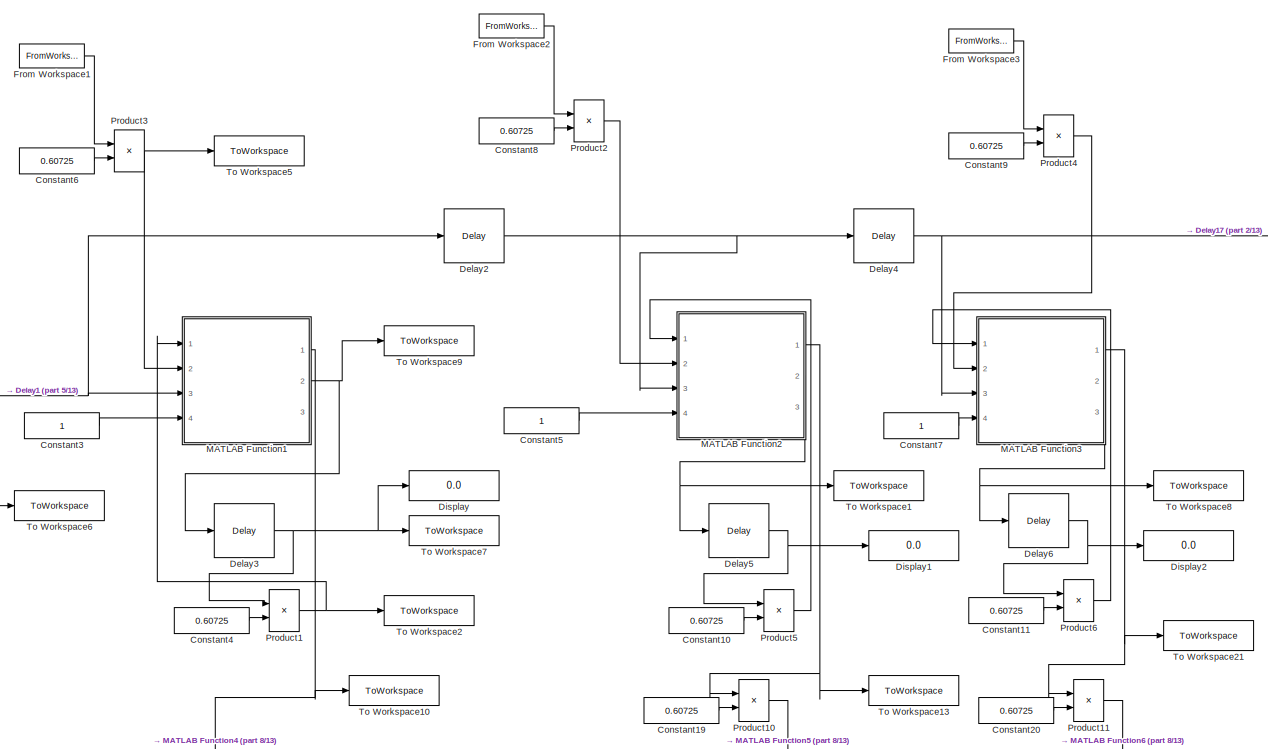
[diagram: root canvas - part 1/13, top left region]
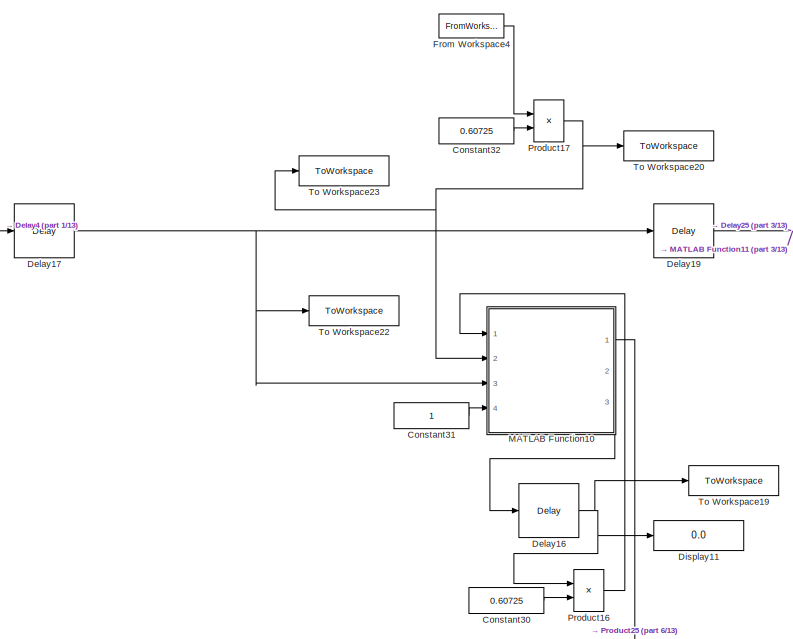
[diagram: root canvas - part 2/13, top center region]
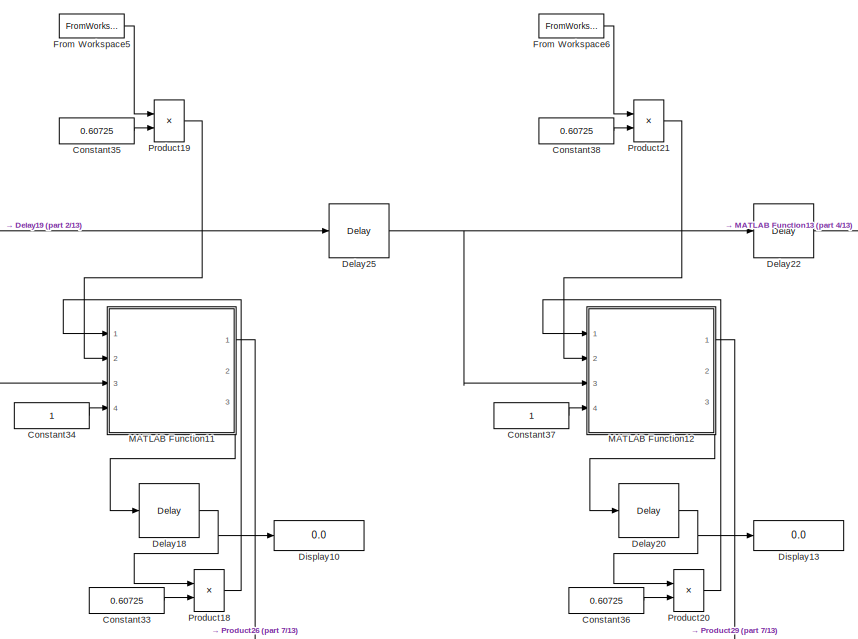
[diagram: root canvas - part 3/13, top right region]
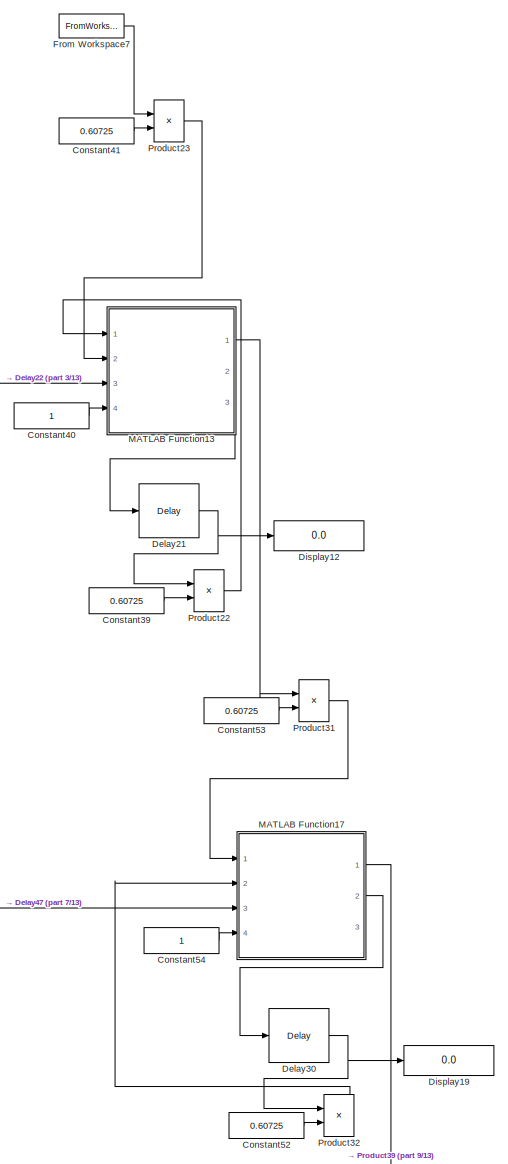
[diagram: root canvas - part 4/13, top right region]
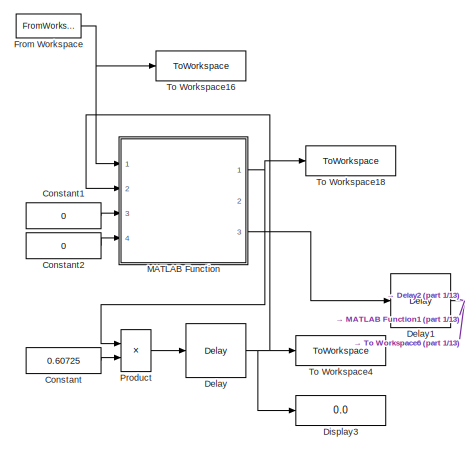
[diagram: root canvas - part 5/13, top left region]
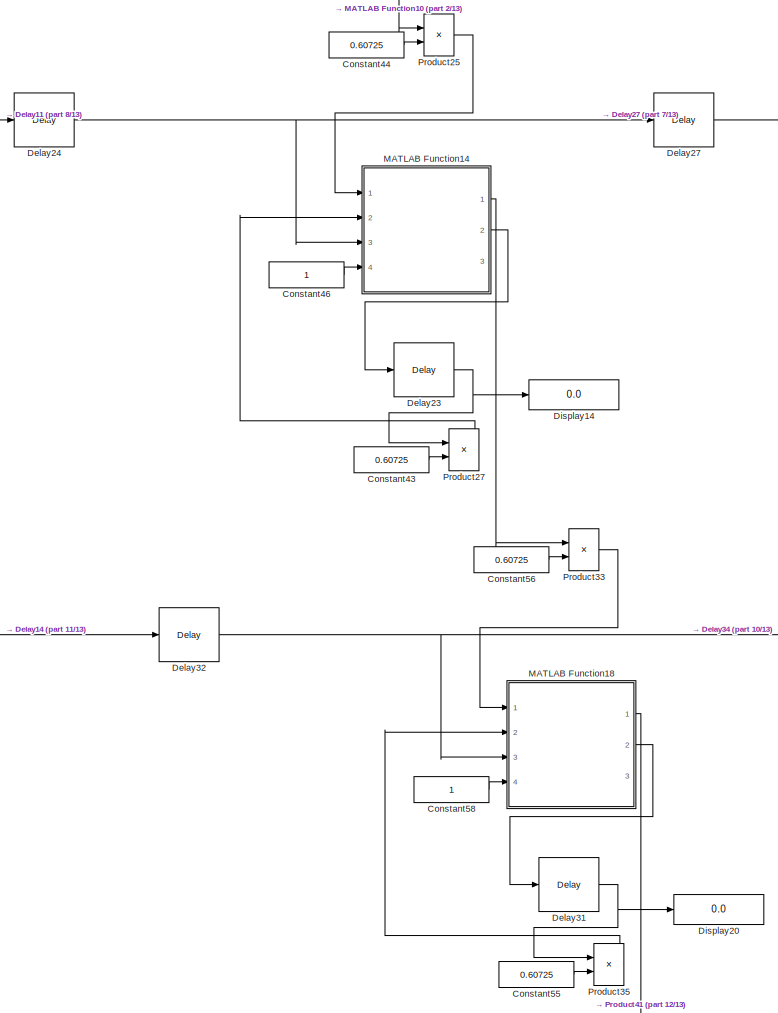
[diagram: root canvas - part 6/13, central region]
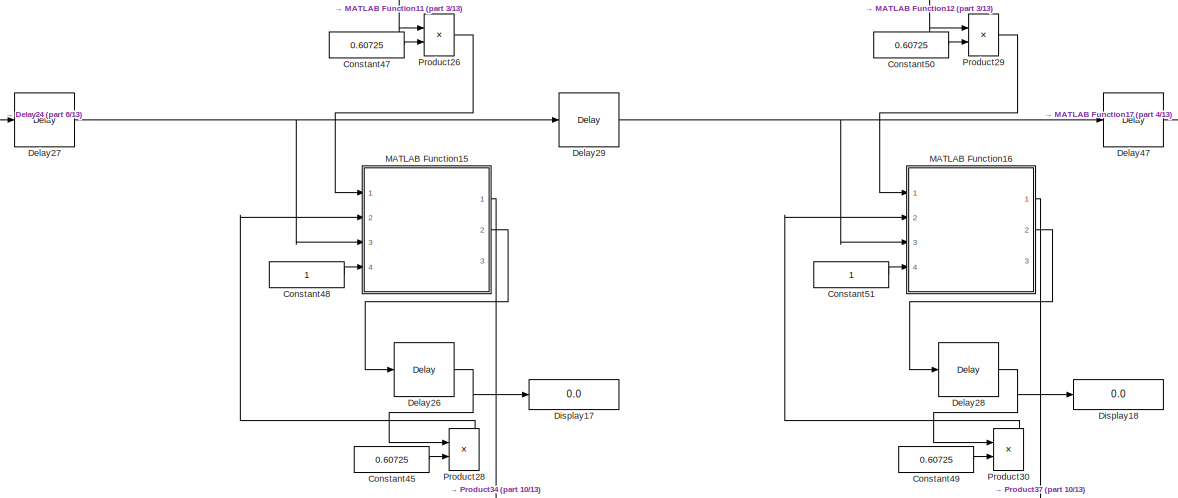
[diagram: root canvas - part 7/13, middle right region]
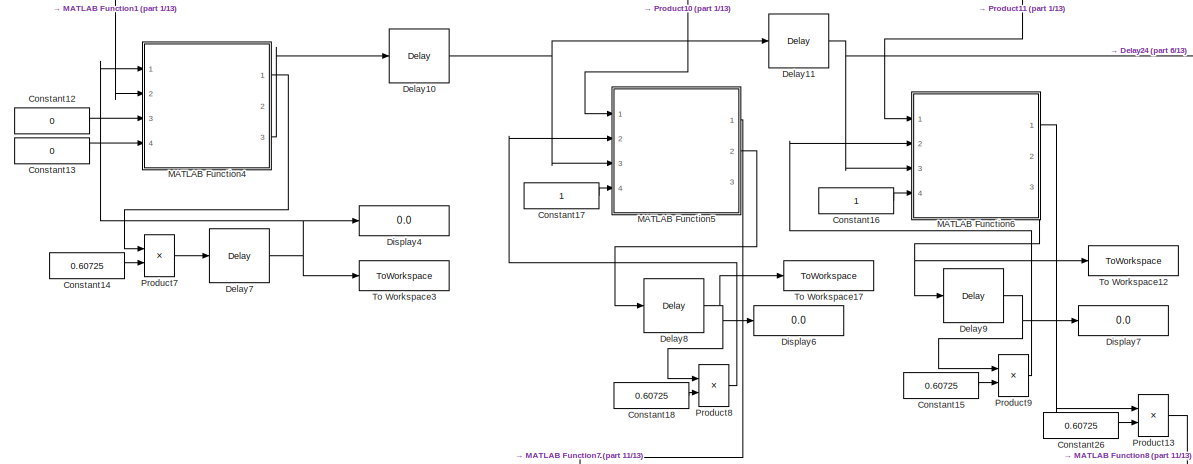
[diagram: root canvas - part 8/13, middle left region]
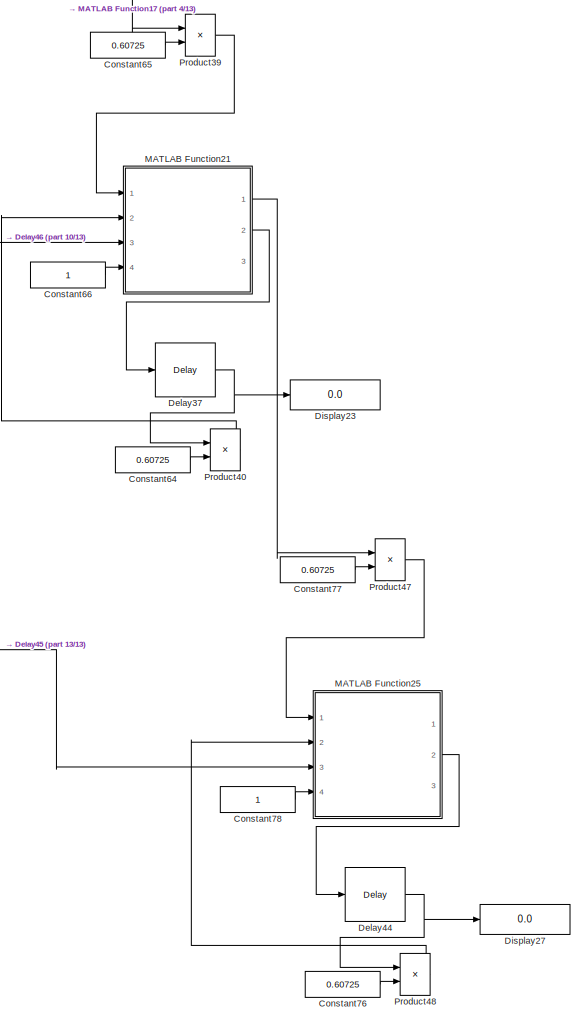
[diagram: root canvas - part 9/13, bottom right region]
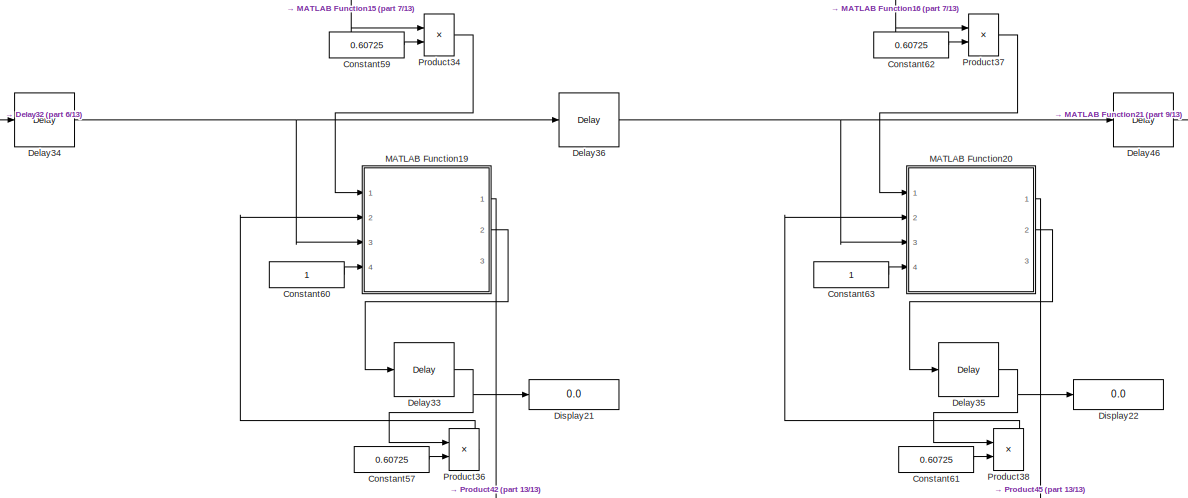
[diagram: root canvas - part 10/13, middle right region]
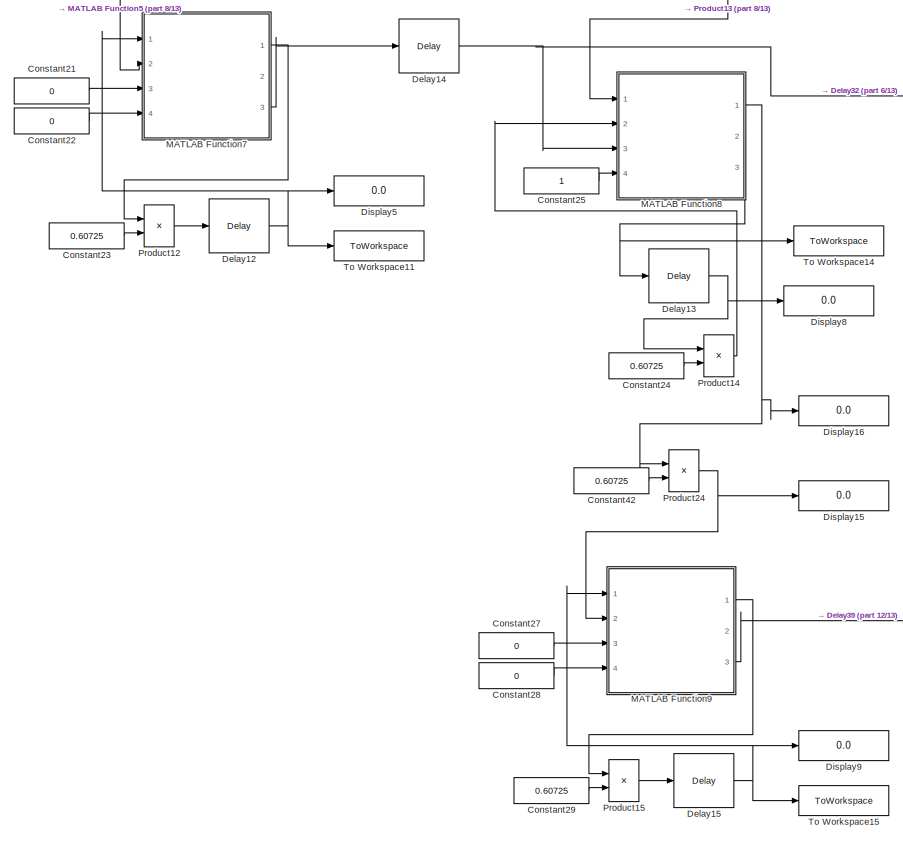
[diagram: root canvas - part 11/13, bottom left region]
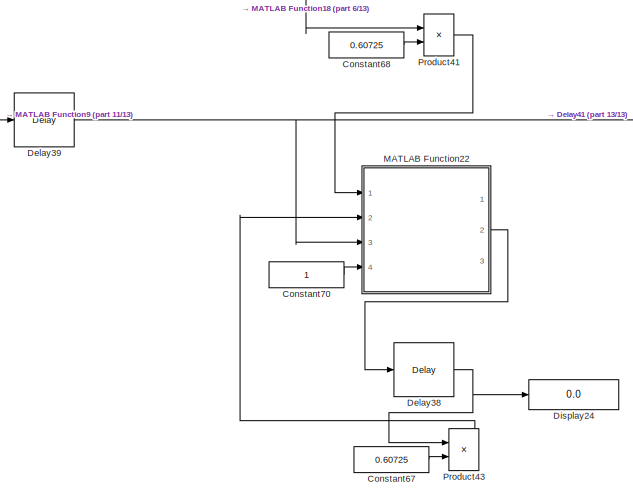
[diagram: root canvas - part 12/13, bottom center region]
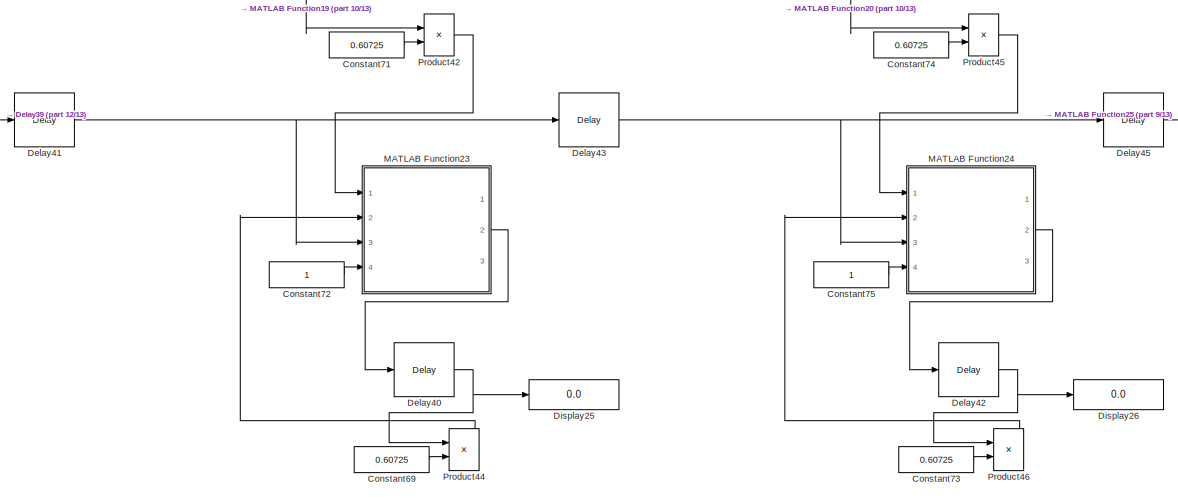
[diagram: root canvas - part 13/13, bottom right region]
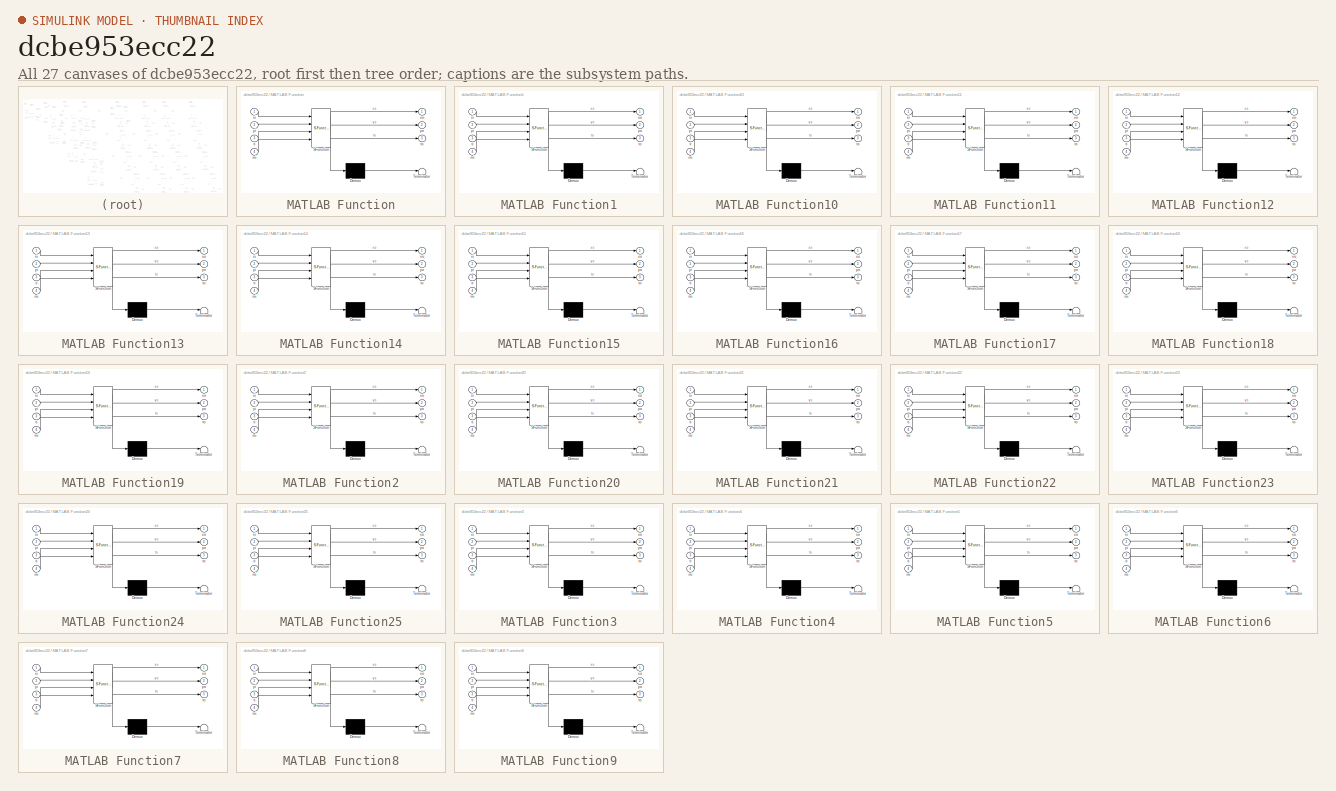
[diagram: thumbnail index - all 27 canvases of the model, root first then tree order]
MODEL slx_dcbe953ecc22
KIND model
CONFIG AbsTol = auto
CONFIG EnableMultiTasking = off
CONFIG FixedStep = 1
CONFIG MaxStep = auto
CONFIG MinStep = auto
CONFIG RelTol = 1e-3
CONFIG SampleTimeConstraint = Unconstrained
CONFIG SolverName = FixedStepDiscrete
CONFIG StartTime = 0.0
CONFIG StopTime = 40
BLOCK [Constant] Constant
  Value = 0.60725
BLOCK [Constant] Constant1
  Value = 0
BLOCK [Constant] Constant10
  Value = 0.60725
BLOCK [Constant] Constant11
  Value = 0.60725
BLOCK [Constant] Constant12
  Value = 0
BLOCK [Constant] Constant13
  Value = 0
BLOCK [Constant] Constant14
  Value = 0.60725
BLOCK [Constant] Constant15
  Value = 0.60725
BLOCK [Constant] Constant16
BLOCK [Constant] Constant17
BLOCK [Constant] Constant18
  Value = 0.60725
BLOCK [Constant] Constant19
  Value = 0.60725
BLOCK [Constant] Constant2
  Value = 0
BLOCK [Constant] Constant20
  Value = 0.60725
BLOCK [Constant] Constant21
  Value = 0
BLOCK [Constant] Constant22
  Value = 0
BLOCK [Constant] Constant23
  Value = 0.60725
BLOCK [Constant] Constant24
  Value = 0.60725
BLOCK [Constant] Constant25
BLOCK [Constant] Constant26
  Value = 0.60725
BLOCK [Constant] Constant27
  Value = 0
BLOCK [Constant] Constant28
  Value = 0
BLOCK [Constant] Constant29
  Value = 0.60725
BLOCK [Constant] Constant3
BLOCK [Constant] Constant30
  Value = 0.60725
BLOCK [Constant] Constant31
BLOCK [Constant] Constant32
  Value = 0.60725
BLOCK [Constant] Constant33
  Value = 0.60725
BLOCK [Constant] Constant34
BLOCK [Constant] Constant35
  Value = 0.60725
BLOCK [Constant] Constant36
  Value = 0.60725
BLOCK [Constant] Constant37
BLOCK [Constant] Constant38
  Value = 0.60725
BLOCK [Constant] Constant39
  Value = 0.60725
BLOCK [Constant] Constant4
  Value = 0.60725
BLOCK [Constant] Constant40
BLOCK [Constant] Constant41
  Value = 0.60725
BLOCK [Constant] Constant42
  Value = 0.60725
BLOCK [Constant] Constant43
  Value = 0.60725
BLOCK [Constant] Constant44
  Value = 0.60725
BLOCK [Constant] Constant45
  Value = 0.60725
BLOCK [Constant] Constant46
BLOCK [Constant] Constant47
  Value = 0.60725
BLOCK [Constant] Constant48
BLOCK [Constant] Constant49
  Value = 0.60725
BLOCK [Constant] Constant5
BLOCK [Constant] Constant50
  Value = 0.60725
BLOCK [Constant] Constant51
BLOCK [Constant] Constant52
  Value = 0.60725
BLOCK [Constant] Constant53
  Value = 0.60725
BLOCK [Constant] Constant54
BLOCK [Constant] Constant55
  Value = 0.60725
BLOCK [Constant] Constant56
  Value = 0.60725
BLOCK [Constant] Constant57
  Value = 0.60725
BLOCK [Constant] Constant58
BLOCK [Constant] Constant59
  Value = 0.60725
BLOCK [Constant] Constant6
  Value = 0.60725
BLOCK [Constant] Constant60
BLOCK [Constant] Constant61
  Value = 0.60725
BLOCK [Constant] Constant62
  Value = 0.60725
BLOCK [Constant] Constant63
BLOCK [Constant] Constant64
  Value = 0.60725
BLOCK [Constant] Constant65
  Value = 0.60725
BLOCK [Constant] Constant66
BLOCK [Constant] Constant67
  Value = 0.60725
BLOCK [Constant] Constant68
  Value = 0.60725
BLOCK [Constant] Constant69
  Value = 0.60725
BLOCK [Constant] Constant7
BLOCK [Constant] Constant70
BLOCK [Constant] Constant71
  Value = 0.60725
BLOCK [Constant] Constant72
BLOCK [Constant] Constant73
  Value = 0.60725
BLOCK [Constant] Constant74
  Value = 0.60725
BLOCK [Constant] Constant75
BLOCK [Constant] Constant76
  Value = 0.60725
BLOCK [Constant] Constant77
  Value = 0.60725
BLOCK [Constant] Constant78
BLOCK [Constant] Constant8
  Value = 0.60725
BLOCK [Constant] Constant9
  Value = 0.60725
BLOCK [Delay] Delay
  DelayLength = 1
  InitialCondition = 0
  InputPortMap = u0
  Ports = [1, 1]
BLOCK [Delay] Delay1
  DelayLength = 1
  InitialCondition = 0
  InputPortMap = u0
  Ports = [1, 1]
BLOCK [Delay] Delay10
  DelayLength = 1
  InitialCondition = 0
  InputPortMap = u0
  Ports = [1, 1]
BLOCK [Delay] Delay11
  DelayLength = 1
  InitialCondition = 0
  InputPortMap = u0
  Ports = [1, 1]
BLOCK [Delay] Delay12
  DelayLength = 1
  InitialCondition = 0
  InputPortMap = u0
  Ports = [1, 1]
BLOCK [Delay] Delay13
  DelayLength = 1
  InitialCondition = 0
  InputPortMap = u0
  Ports = [1, 1]
BLOCK [Delay] Delay14
  DelayLength = 1
  InitialCondition = 0
  InputPortMap = u0
  Ports = [1, 1]
BLOCK [Delay] Delay15
  DelayLength = 1
  InitialCondition = 0
  InputPortMap = u0
  Ports = [1, 1]
BLOCK [Delay] Delay16
  DelayLength = 1
  InitialCondition = 0
  InputPortMap = u0
  Ports = [1, 1]
BLOCK [Delay] Delay17
  DelayLength = 1
  InitialCondition = 0
  InputPortMap = u0
  Ports = [1, 1]
BLOCK [Delay] Delay18
  DelayLength = 1
  InitialCondition = 0
  InputPortMap = u0
  Ports = [1, 1]
BLOCK [Delay] Delay19
  DelayLength = 1
  InitialCondition = 0
  InputPortMap = u0
  Ports = [1, 1]
BLOCK [Delay] Delay2
  DelayLength = 1
  InitialCondition = 0
  InputPortMap = u0
  Ports = [1, 1]
BLOCK [Delay] Delay20
  DelayLength = 1
  InitialCondition = 0
  InputPortMap = u0
  Ports = [1, 1]
BLOCK [Delay] Delay21
  DelayLength = 1
  InitialCondition = 0
  InputPortMap = u0
  Ports = [1, 1]
BLOCK [Delay] Delay22
  DelayLength = 1
  InitialCondition = 0
  InputPortMap = u0
  Ports = [1, 1]
BLOCK [Delay] Delay23
  DelayLength = 1
  InitialCondition = 0
  InputPortMap = u0
  Ports = [1, 1]
BLOCK [Delay] Delay24
  DelayLength = 1
  InitialCondition = 0
  InputPortMap = u0
  Ports = [1, 1]
BLOCK [Delay] Delay25
  DelayLength = 1
  InitialCondition = 0
  InputPortMap = u0
  Ports = [1, 1]
BLOCK [Delay] Delay26
  DelayLength = 1
  InitialCondition = 0
  InputPortMap = u0
  Ports = [1, 1]
BLOCK [Delay] Delay27
  DelayLength = 1
  InitialCondition = 0
  InputPortMap = u0
  Ports = [1, 1]
BLOCK [Delay] Delay28
  DelayLength = 1
  InitialCondition = 0
  InputPortMap = u0
  Ports = [1, 1]
BLOCK [Delay] Delay29
  DelayLength = 1
  InitialCondition = 0
  InputPortMap = u0
  Ports = [1, 1]
BLOCK [Delay] Delay3
  DelayLength = 1
  InitialCondition = 0
  InputPortMap = u0
  Ports = [1, 1]
BLOCK [Delay] Delay30
  DelayLength = 1
  InitialCondition = 0
  InputPortMap = u0
  Ports = [1, 1]
BLOCK [Delay] Delay31
  DelayLength = 1
  InitialCondition = 0
  InputPortMap = u0
  Ports = [1, 1]
BLOCK [Delay] Delay32
  DelayLength = 1
  InitialCondition = 0
  InputPortMap = u0
  Ports = [1, 1]
BLOCK [Delay] Delay33
  DelayLength = 1
  InitialCondition = 0
  InputPortMap = u0
  Ports = [1, 1]
BLOCK [Delay] Delay34
  DelayLength = 1
  InitialCondition = 0
  InputPortMap = u0
  Ports = [1, 1]
BLOCK [Delay] Delay35
  DelayLength = 1
  InitialCondition = 0
  InputPortMap = u0
  Ports = [1, 1]
BLOCK [Delay] Delay36
  DelayLength = 1
  InitialCondition = 0
  InputPortMap = u0
  Ports = [1, 1]
BLOCK [Delay] Delay37
  DelayLength = 1
  InitialCondition = 0
  InputPortMap = u0
  Ports = [1, 1]
BLOCK [Delay] Delay38
  DelayLength = 1
  InitialCondition = 0
  InputPortMap = u0
  Ports = [1, 1]
BLOCK [Delay] Delay39
  DelayLength = 1
  InitialCondition = 0
  InputPortMap = u0
  Ports = [1, 1]
BLOCK [Delay] Delay4
  DelayLength = 1
  InitialCondition = 0
  InputPortMap = u0
  Ports = [1, 1]
BLOCK [Delay] Delay40
  DelayLength = 1
  InitialCondition = 0
  InputPortMap = u0
  Ports = [1, 1]
BLOCK [Delay] Delay41
  DelayLength = 1
  InitialCondition = 0
  InputPortMap = u0
  Ports = [1, 1]
BLOCK [Delay] Delay42
  DelayLength = 1
  InitialCondition = 0
  InputPortMap = u0
  Ports = [1, 1]
BLOCK [Delay] Delay43
  DelayLength = 1
  InitialCondition = 0
  InputPortMap = u0
  Ports = [1, 1]
BLOCK [Delay] Delay44
  DelayLength = 1
  InitialCondition = 0
  InputPortMap = u0
  Ports = [1, 1]
BLOCK [Delay] Delay45
  DelayLength = 1
  InitialCondition = 0
  InputPortMap = u0
  Ports = [1, 1]
BLOCK [Delay] Delay46
  DelayLength = 1
  InitialCondition = 0
  InputPortMap = u0
  Ports = [1, 1]
BLOCK [Delay] Delay47
  DelayLength = 1
  InitialCondition = 0
  InputPortMap = u0
  Ports = [1, 1]
BLOCK [Delay] Delay5
  DelayLength = 1
  InitialCondition = 0
  InputPortMap = u0
  Ports = [1, 1]
BLOCK [Delay] Delay6
  DelayLength = 1
  InitialCondition = 0
  InputPortMap = u0
  Ports = [1, 1]
BLOCK [Delay] Delay7
  DelayLength = 1
  InitialCondition = 0
  InputPortMap = u0
  Ports = [1, 1]
BLOCK [Delay] Delay8
  DelayLength = 1
  InitialCondition = 0
  InputPortMap = u0
  Ports = [1, 1]
BLOCK [Delay] Delay9
  DelayLength = 1
  InitialCondition = 0
  InputPortMap = u0
  Ports = [1, 1]
BLOCK [Display] Display
  Decimation = 1
  Ports = [1]
BLOCK [Display] Display1
  Decimation = 1
  Ports = [1]
BLOCK [Display] Display10
  Decimation = 1
  Ports = [1]
BLOCK [Display] Display11
  Decimation = 1
  Ports = [1]
BLOCK [Display] Display12
  Decimation = 1
  Ports = [1]
BLOCK [Display] Display13
  Decimation = 1
  Ports = [1]
BLOCK [Display] Display14
  Decimation = 1
  Ports = [1]
BLOCK [Display] Display15
  Decimation = 1
  Ports = [1]
BLOCK [Display] Display16
  Decimation = 1
  Ports = [1]
BLOCK [Display] Display17
  Decimation = 1
  Ports = [1]
BLOCK [Display] Display18
  Decimation = 1
  Ports = [1]
BLOCK [Display] Display19
  Decimation = 1
  Ports = [1]
BLOCK [Display] Display2
  Decimation = 1
  Ports = [1]
BLOCK [Display] Display20
  Decimation = 1
  Ports = [1]
BLOCK [Display] Display21
  Decimation = 1
  Ports = [1]
BLOCK [Display] Display22
  Decimation = 1
  Ports = [1]
BLOCK [Display] Display23
  Decimation = 1
  Ports = [1]
BLOCK [Display] Display24
  Decimation = 1
  Ports = [1]
BLOCK [Display] Display25
  Decimation = 1
  Ports = [1]
BLOCK [Display] Display26
  Decimation = 1
  Ports = [1]
BLOCK [Display] Display27
  Decimation = 1
  Ports = [1]
BLOCK [Display] Display3
  Decimation = 1
  Ports = [1]
BLOCK [Display] Display4
  Decimation = 1
  Ports = [1]
BLOCK [Display] Display5
  Decimation = 1
  Ports = [1]
BLOCK [Display] Display6
  Decimation = 1
  Ports = [1]
BLOCK [Display] Display7
  Decimation = 1
  Ports = [1]
BLOCK [Display] Display8
  Decimation = 1
  Ports = [1]
BLOCK [Display] Display9
  Decimation = 1
  Ports = [1]
BLOCK [FromWorkspace] From Workspace
  OutputAfterFinalValue = Setting to zero
  VariableName = SlxA
BLOCK [FromWorkspace] From Workspace1
  OutputAfterFinalValue = Setting to zero
  VariableName = SlxB
BLOCK [FromWorkspace] From Workspace2
  OutputAfterFinalValue = Setting to zero
  VariableName = SlxC
BLOCK [FromWorkspace] From Workspace3
  OutputAfterFinalValue = Setting to zero
  VariableName = SlxD
BLOCK [FromWorkspace] From Workspace4
  OutputAfterFinalValue = Setting to zero
  VariableName = SlxQ1
BLOCK [FromWorkspace] From Workspace5
  OutputAfterFinalValue = Setting to zero
  VariableName = SlxQ2
BLOCK [FromWorkspace] From Workspace6
  OutputAfterFinalValue = Setting to zero
  VariableName = SlxQ3
BLOCK [FromWorkspace] From Workspace7
  OutputAfterFinalValue = Setting to zero
  VariableName = SlxQ4
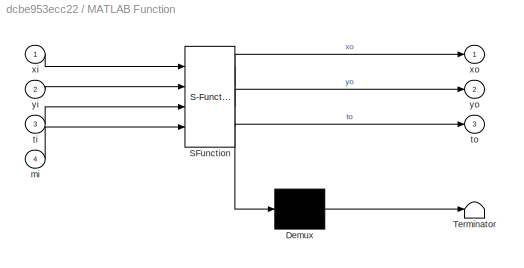
BLOCK [SubSystem] MATLAB Function
  ErrorFcn = Stateflow.Translate.translate
  PermitHierarchicalResolution = ExplicitOnly
  Ports = [4, 3]
  RequestExecContextInheritance = off
  SFBlockType = MATLAB Function
  TreatAsAtomicUnit = on
BLOCK [Demux] MATLAB Function/ Demux 
  Outputs = 1
  Ports = [1, 1]
BLOCK [S-Function] MATLAB Function/ SFunction 
  EnableBusSupport = on
  FunctionName = sf_sfun
  PortCounts = [4 4]
  Ports = [4, 4]
  SFcnIsStateOwnerBlock = off
  SFunctionDeploymentMode = off
  Tag = Stateflow S-Function 2
BLOCK [Terminator] MATLAB Function/ Terminator 
BLOCK [Inport] MATLAB Function/mi
  Port = 4
BLOCK [Inport] MATLAB Function/ti
  Port = 3
BLOCK [Outport] MATLAB Function/to
  Port = 3
BLOCK [Inport] MATLAB Function/xi
BLOCK [Outport] MATLAB Function/xo
BLOCK [Inport] MATLAB Function/yi
  Port = 2
BLOCK [Outport] MATLAB Function/yo
  Port = 2
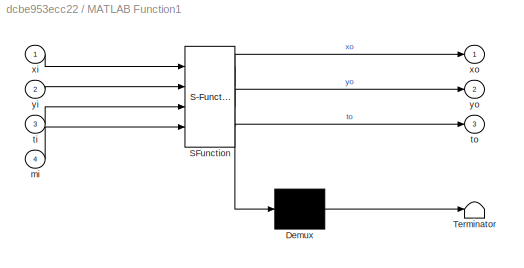
BLOCK [SubSystem] MATLAB Function1
  ErrorFcn = Stateflow.Translate.translate
  PermitHierarchicalResolution = ExplicitOnly
  Ports = [4, 3]
  RequestExecContextInheritance = off
  SFBlockType = MATLAB Function
  TreatAsAtomicUnit = on
BLOCK [Demux] MATLAB Function1/ Demux 
  Outputs = 1
  Ports = [1, 1]
BLOCK [S-Function] MATLAB Function1/ SFunction 
  EnableBusSupport = on
  FunctionName = sf_sfun
  PortCounts = [4 4]
  Ports = [4, 4]
  SFcnIsStateOwnerBlock = off
  SFunctionDeploymentMode = off
  Tag = Stateflow S-Function 1
BLOCK [Terminator] MATLAB Function1/ Terminator 
BLOCK [Inport] MATLAB Function1/mi
  Port = 4
BLOCK [Inport] MATLAB Function1/ti
  Port = 3
BLOCK [Outport] MATLAB Function1/to
  Port = 3
BLOCK [Inport] MATLAB Function1/xi
BLOCK [Outport] MATLAB Function1/xo
BLOCK [Inport] MATLAB Function1/yi
  Port = 2
BLOCK [Outport] MATLAB Function1/yo
  Port = 2
BLOCK [SubSystem] MATLAB Function10
  ErrorFcn = Stateflow.Translate.translate
  PermitHierarchicalResolution = ExplicitOnly
  Ports = [4, 3]
  RequestExecContextInheritance = off
  SFBlockType = MATLAB Function
  TreatAsAtomicUnit = on
BLOCK [Demux] MATLAB Function10/ Demux 
  Outputs = 1
  Ports = [1, 1]
BLOCK [S-Function] MATLAB Function10/ SFunction 
  EnableBusSupport = on
  FunctionName = sf_sfun
  PortCounts = [4 4]
  Ports = [4, 4]
  SFcnIsStateOwnerBlock = off
  SFunctionDeploymentMode = off
  Tag = Stateflow S-Function 11
BLOCK [Terminator] MATLAB Function10/ Terminator 
BLOCK [Inport] MATLAB Function10/mi
  Port = 4
BLOCK [Inport] MATLAB Function10/ti
  Port = 3
BLOCK [Outport] MATLAB Function10/to
  Port = 3
BLOCK [Inport] MATLAB Function10/xi
BLOCK [Outport] MATLAB Function10/xo
BLOCK [Inport] MATLAB Function10/yi
  Port = 2
BLOCK [Outport] MATLAB Function10/yo
  Port = 2
BLOCK [SubSystem] MATLAB Function11
  ErrorFcn = Stateflow.Translate.translate
  PermitHierarchicalResolution = ExplicitOnly
  Ports = [4, 3]
  RequestExecContextInheritance = off
  SFBlockType = MATLAB Function
  TreatAsAtomicUnit = on
BLOCK [Demux] MATLAB Function11/ Demux 
  Outputs = 1
  Ports = [1, 1]
BLOCK [S-Function] MATLAB Function11/ SFunction 
  EnableBusSupport = on
  FunctionName = sf_sfun
  PortCounts = [4 4]
  Ports = [4, 4]
  SFcnIsStateOwnerBlock = off
  SFunctionDeploymentMode = off
  Tag = Stateflow S-Function 12
BLOCK [Terminator] MATLAB Function11/ Terminator 
BLOCK [Inport] MATLAB Function11/mi
  Port = 4
BLOCK [Inport] MATLAB Function11/ti
  Port = 3
BLOCK [Outport] MATLAB Function11/to
  Port = 3
BLOCK [Inport] MATLAB Function11/xi
BLOCK [Outport] MATLAB Function11/xo
BLOCK [Inport] MATLAB Function11/yi
  Port = 2
BLOCK [Outport] MATLAB Function11/yo
  Port = 2
BLOCK [SubSystem] MATLAB Function12
  ErrorFcn = Stateflow.Translate.translate
  PermitHierarchicalResolution = ExplicitOnly
  Ports = [4, 3]
  RequestExecContextInheritance = off
  SFBlockType = MATLAB Function
  TreatAsAtomicUnit = on
BLOCK [Demux] MATLAB Function12/ Demux 
  Outputs = 1
  Ports = [1, 1]
BLOCK [S-Function] MATLAB Function12/ SFunction 
  EnableBusSupport = on
  FunctionName = sf_sfun
  PortCounts = [4 4]
  Ports = [4, 4]
  SFcnIsStateOwnerBlock = off
  SFunctionDeploymentMode = off
  Tag = Stateflow S-Function 13
BLOCK [Terminator] MATLAB Function12/ Terminator 
BLOCK [Inport] MATLAB Function12/mi
  Port = 4
BLOCK [Inport] MATLAB Function12/ti
  Port = 3
BLOCK [Outport] MATLAB Function12/to
  Port = 3
BLOCK [Inport] MATLAB Function12/xi
BLOCK [Outport] MATLAB Function12/xo
BLOCK [Inport] MATLAB Function12/yi
  Port = 2
BLOCK [Outport] MATLAB Function12/yo
  Port = 2
BLOCK [SubSystem] MATLAB Function13
  ErrorFcn = Stateflow.Translate.translate
  PermitHierarchicalResolution = ExplicitOnly
  Ports = [4, 3]
  RequestExecContextInheritance = off
  SFBlockType = MATLAB Function
  TreatAsAtomicUnit = on
BLOCK [Demux] MATLAB Function13/ Demux 
  Outputs = 1
  Ports = [1, 1]
BLOCK [S-Function] MATLAB Function13/ SFunction 
  EnableBusSupport = on
  FunctionName = sf_sfun
  PortCounts = [4 4]
  Ports = [4, 4]
  SFcnIsStateOwnerBlock = off
  SFunctionDeploymentMode = off
  Tag = Stateflow S-Function 14
BLOCK [Terminator] MATLAB Function13/ Terminator 
BLOCK [Inport] MATLAB Function13/mi
  Port = 4
BLOCK [Inport] MATLAB Function13/ti
  Port = 3
BLOCK [Outport] MATLAB Function13/to
  Port = 3
BLOCK [Inport] MATLAB Function13/xi
BLOCK [Outport] MATLAB Function13/xo
BLOCK [Inport] MATLAB Function13/yi
  Port = 2
BLOCK [Outport] MATLAB Function13/yo
  Port = 2
BLOCK [SubSystem] MATLAB Function14
  ErrorFcn = Stateflow.Translate.translate
  PermitHierarchicalResolution = ExplicitOnly
  Ports = [4, 3]
  RequestExecContextInheritance = off
  SFBlockType = MATLAB Function
  TreatAsAtomicUnit = on
BLOCK [Demux] MATLAB Function14/ Demux 
  Outputs = 1
  Ports = [1, 1]
BLOCK [S-Function] MATLAB Function14/ SFunction 
  EnableBusSupport = on
  FunctionName = sf_sfun
  PortCounts = [4 4]
  Ports = [4, 4]
  SFcnIsStateOwnerBlock = off
  SFunctionDeploymentMode = off
  Tag = Stateflow S-Function 15
BLOCK [Terminator] MATLAB Function14/ Terminator 
BLOCK [Inport] MATLAB Function14/mi
  Port = 4
BLOCK [Inport] MATLAB Function14/ti
  Port = 3
BLOCK [Outport] MATLAB Function14/to
  Port = 3
BLOCK [Inport] MATLAB Function14/xi
BLOCK [Outport] MATLAB Function14/xo
BLOCK [Inport] MATLAB Function14/yi
  Port = 2
BLOCK [Outport] MATLAB Function14/yo
  Port = 2
BLOCK [SubSystem] MATLAB Function15
  ErrorFcn = Stateflow.Translate.translate
  PermitHierarchicalResolution = ExplicitOnly
  Ports = [4, 3]
  RequestExecContextInheritance = off
  SFBlockType = MATLAB Function
  TreatAsAtomicUnit = on
BLOCK [Demux] MATLAB Function15/ Demux 
  Outputs = 1
  Ports = [1, 1]
BLOCK [S-Function] MATLAB Function15/ SFunction 
  EnableBusSupport = on
  FunctionName = sf_sfun
  PortCounts = [4 4]
  Ports = [4, 4]
  SFcnIsStateOwnerBlock = off
  SFunctionDeploymentMode = off
  Tag = Stateflow S-Function 16
BLOCK [Terminator] MATLAB Function15/ Terminator 
BLOCK [Inport] MATLAB Function15/mi
  Port = 4
BLOCK [Inport] MATLAB Function15/ti
  Port = 3
BLOCK [Outport] MATLAB Function15/to
  Port = 3
BLOCK [Inport] MATLAB Function15/xi
BLOCK [Outport] MATLAB Function15/xo
BLOCK [Inport] MATLAB Function15/yi
  Port = 2
BLOCK [Outport] MATLAB Function15/yo
  Port = 2
BLOCK [SubSystem] MATLAB Function16
  ErrorFcn = Stateflow.Translate.translate
  PermitHierarchicalResolution = ExplicitOnly
  Ports = [4, 3]
  RequestExecContextInheritance = off
  SFBlockType = MATLAB Function
  TreatAsAtomicUnit = on
BLOCK [Demux] MATLAB Function16/ Demux 
  Outputs = 1
  Ports = [1, 1]
BLOCK [S-Function] MATLAB Function16/ SFunction 
  EnableBusSupport = on
  FunctionName = sf_sfun
  PortCounts = [4 4]
  Ports = [4, 4]
  SFcnIsStateOwnerBlock = off
  SFunctionDeploymentMode = off
  Tag = Stateflow S-Function 17
BLOCK [Terminator] MATLAB Function16/ Terminator 
BLOCK [Inport] MATLAB Function16/mi
  Port = 4
BLOCK [Inport] MATLAB Function16/ti
  Port = 3
BLOCK [Outport] MATLAB Function16/to
  Port = 3
BLOCK [Inport] MATLAB Function16/xi
BLOCK [Outport] MATLAB Function16/xo
BLOCK [Inport] MATLAB Function16/yi
  Port = 2
BLOCK [Outport] MATLAB Function16/yo
  Port = 2
BLOCK [SubSystem] MATLAB Function17
  ErrorFcn = Stateflow.Translate.translate
  PermitHierarchicalResolution = ExplicitOnly
  Ports = [4, 3]
  RequestExecContextInheritance = off
  SFBlockType = MATLAB Function
  TreatAsAtomicUnit = on
BLOCK [Demux] MATLAB Function17/ Demux 
  Outputs = 1
  Ports = [1, 1]
BLOCK [S-Function] MATLAB Function17/ SFunction 
  EnableBusSupport = on
  FunctionName = sf_sfun
  PortCounts = [4 4]
  Ports = [4, 4]
  SFcnIsStateOwnerBlock = off
  SFunctionDeploymentMode = off
  Tag = Stateflow S-Function 18
BLOCK [Terminator] MATLAB Function17/ Terminator 
BLOCK [Inport] MATLAB Function17/mi
  Port = 4
BLOCK [Inport] MATLAB Function17/ti
  Port = 3
BLOCK [Outport] MATLAB Function17/to
  Port = 3
BLOCK [Inport] MATLAB Function17/xi
BLOCK [Outport] MATLAB Function17/xo
BLOCK [Inport] MATLAB Function17/yi
  Port = 2
BLOCK [Outport] MATLAB Function17/yo
  Port = 2
BLOCK [SubSystem] MATLAB Function18
  ErrorFcn = Stateflow.Translate.translate
  PermitHierarchicalResolution = ExplicitOnly
  Ports = [4, 3]
  RequestExecContextInheritance = off
  SFBlockType = MATLAB Function
  TreatAsAtomicUnit = on
BLOCK [Demux] MATLAB Function18/ Demux 
  Outputs = 1
  Ports = [1, 1]
BLOCK [S-Function] MATLAB Function18/ SFunction 
  EnableBusSupport = on
  FunctionName = sf_sfun
  PortCounts = [4 4]
  Ports = [4, 4]
  SFcnIsStateOwnerBlock = off
  SFunctionDeploymentMode = off
  Tag = Stateflow S-Function 19
BLOCK [Terminator] MATLAB Function18/ Terminator 
BLOCK [Inport] MATLAB Function18/mi
  Port = 4
BLOCK [Inport] MATLAB Function18/ti
  Port = 3
BLOCK [Outport] MATLAB Function18/to
  Port = 3
BLOCK [Inport] MATLAB Function18/xi
BLOCK [Outport] MATLAB Function18/xo
BLOCK [Inport] MATLAB Function18/yi
  Port = 2
BLOCK [Outport] MATLAB Function18/yo
  Port = 2
BLOCK [SubSystem] MATLAB Function19
  ErrorFcn = Stateflow.Translate.translate
  PermitHierarchicalResolution = ExplicitOnly
  Ports = [4, 3]
  RequestExecContextInheritance = off
  SFBlockType = MATLAB Function
  TreatAsAtomicUnit = on
BLOCK [Demux] MATLAB Function19/ Demux 
  Outputs = 1
  Ports = [1, 1]
BLOCK [S-Function] MATLAB Function19/ SFunction 
  EnableBusSupport = on
  FunctionName = sf_sfun
  PortCounts = [4 4]
  Ports = [4, 4]
  SFcnIsStateOwnerBlock = off
  SFunctionDeploymentMode = off
  Tag = Stateflow S-Function 20
BLOCK [Terminator] MATLAB Function19/ Terminator 
BLOCK [Inport] MATLAB Function19/mi
  Port = 4
BLOCK [Inport] MATLAB Function19/ti
  Port = 3
BLOCK [Outport] MATLAB Function19/to
  Port = 3
BLOCK [Inport] MATLAB Function19/xi
BLOCK [Outport] MATLAB Function19/xo
BLOCK [Inport] MATLAB Function19/yi
  Port = 2
BLOCK [Outport] MATLAB Function19/yo
  Port = 2
BLOCK [SubSystem] MATLAB Function2
  ErrorFcn = Stateflow.Translate.translate
  PermitHierarchicalResolution = ExplicitOnly
  Ports = [4, 3]
  RequestExecContextInheritance = off
  SFBlockType = MATLAB Function
  TreatAsAtomicUnit = on
BLOCK [Demux] MATLAB Function2/ Demux 
  Outputs = 1
  Ports = [1, 1]
BLOCK [S-Function] MATLAB Function2/ SFunction 
  EnableBusSupport = on
  FunctionName = sf_sfun
  PortCounts = [4 4]
  Ports = [4, 4]
  SFcnIsStateOwnerBlock = off
  SFunctionDeploymentMode = off
  Tag = Stateflow S-Function 3
BLOCK [Terminator] MATLAB Function2/ Terminator 
BLOCK [Inport] MATLAB Function2/mi
  Port = 4
BLOCK [Inport] MATLAB Function2/ti
  Port = 3
BLOCK [Outport] MATLAB Function2/to
  Port = 3
BLOCK [Inport] MATLAB Function2/xi
BLOCK [Outport] MATLAB Function2/xo
BLOCK [Inport] MATLAB Function2/yi
  Port = 2
BLOCK [Outport] MATLAB Function2/yo
  Port = 2
BLOCK [SubSystem] MATLAB Function20
  ErrorFcn = Stateflow.Translate.translate
  PermitHierarchicalResolution = ExplicitOnly
  Ports = [4, 3]
  RequestExecContextInheritance = off
  SFBlockType = MATLAB Function
  TreatAsAtomicUnit = on
BLOCK [Demux] MATLAB Function20/ Demux 
  Outputs = 1
  Ports = [1, 1]
BLOCK [S-Function] MATLAB Function20/ SFunction 
  EnableBusSupport = on
  FunctionName = sf_sfun
  PortCounts = [4 4]
  Ports = [4, 4]
  SFcnIsStateOwnerBlock = off
  SFunctionDeploymentMode = off
  Tag = Stateflow S-Function 21
BLOCK [Terminator] MATLAB Function20/ Terminator 
BLOCK [Inport] MATLAB Function20/mi
  Port = 4
BLOCK [Inport] MATLAB Function20/ti
  Port = 3
BLOCK [Outport] MATLAB Function20/to
  Port = 3
BLOCK [Inport] MATLAB Function20/xi
BLOCK [Outport] MATLAB Function20/xo
BLOCK [Inport] MATLAB Function20/yi
  Port = 2
BLOCK [Outport] MATLAB Function20/yo
  Port = 2
BLOCK [SubSystem] MATLAB Function21
  ErrorFcn = Stateflow.Translate.translate
  PermitHierarchicalResolution = ExplicitOnly
  Ports = [4, 3]
  RequestExecContextInheritance = off
  SFBlockType = MATLAB Function
  TreatAsAtomicUnit = on
BLOCK [Demux] MATLAB Function21/ Demux 
  Outputs = 1
  Ports = [1, 1]
BLOCK [S-Function] MATLAB Function21/ SFunction 
  EnableBusSupport = on
  FunctionName = sf_sfun
  PortCounts = [4 4]
  Ports = [4, 4]
  SFcnIsStateOwnerBlock = off
  SFunctionDeploymentMode = off
  Tag = Stateflow S-Function 22
BLOCK [Terminator] MATLAB Function21/ Terminator 
BLOCK [Inport] MATLAB Function21/mi
  Port = 4
BLOCK [Inport] MATLAB Function21/ti
  Port = 3
BLOCK [Outport] MATLAB Function21/to
  Port = 3
BLOCK [Inport] MATLAB Function21/xi
BLOCK [Outport] MATLAB Function21/xo
BLOCK [Inport] MATLAB Function21/yi
  Port = 2
BLOCK [Outport] MATLAB Function21/yo
  Port = 2
BLOCK [SubSystem] MATLAB Function22
  ErrorFcn = Stateflow.Translate.translate
  PermitHierarchicalResolution = ExplicitOnly
  Ports = [4, 3]
  RequestExecContextInheritance = off
  SFBlockType = MATLAB Function
  TreatAsAtomicUnit = on
BLOCK [Demux] MATLAB Function22/ Demux 
  Outputs = 1
  Ports = [1, 1]
BLOCK [S-Function] MATLAB Function22/ SFunction 
  EnableBusSupport = on
  FunctionName = sf_sfun
  PortCounts = [4 4]
  Ports = [4, 4]
  SFcnIsStateOwnerBlock = off
  SFunctionDeploymentMode = off
  Tag = Stateflow S-Function 23
BLOCK [Terminator] MATLAB Function22/ Terminator 
BLOCK [Inport] MATLAB Function22/mi
  Port = 4
BLOCK [Inport] MATLAB Function22/ti
  Port = 3
BLOCK [Outport] MATLAB Function22/to
  Port = 3
BLOCK [Inport] MATLAB Function22/xi
BLOCK [Outport] MATLAB Function22/xo
BLOCK [Inport] MATLAB Function22/yi
  Port = 2
BLOCK [Outport] MATLAB Function22/yo
  Port = 2
BLOCK [SubSystem] MATLAB Function23
  ErrorFcn = Stateflow.Translate.translate
  PermitHierarchicalResolution = ExplicitOnly
  Ports = [4, 3]
  RequestExecContextInheritance = off
  SFBlockType = MATLAB Function
  TreatAsAtomicUnit = on
BLOCK [Demux] MATLAB Function23/ Demux 
  Outputs = 1
  Ports = [1, 1]
BLOCK [S-Function] MATLAB Function23/ SFunction 
  EnableBusSupport = on
  FunctionName = sf_sfun
  PortCounts = [4 4]
  Ports = [4, 4]
  SFcnIsStateOwnerBlock = off
  SFunctionDeploymentMode = off
  Tag = Stateflow S-Function 24
BLOCK [Terminator] MATLAB Function23/ Terminator 
BLOCK [Inport] MATLAB Function23/mi
  Port = 4
BLOCK [Inport] MATLAB Function23/ti
  Port = 3
BLOCK [Outport] MATLAB Function23/to
  Port = 3
BLOCK [Inport] MATLAB Function23/xi
BLOCK [Outport] MATLAB Function23/xo
BLOCK [Inport] MATLAB Function23/yi
  Port = 2
BLOCK [Outport] MATLAB Function23/yo
  Port = 2
BLOCK [SubSystem] MATLAB Function24
  ErrorFcn = Stateflow.Translate.translate
  PermitHierarchicalResolution = ExplicitOnly
  Ports = [4, 3]
  RequestExecContextInheritance = off
  SFBlockType = MATLAB Function
  TreatAsAtomicUnit = on
BLOCK [Demux] MATLAB Function24/ Demux 
  Outputs = 1
  Ports = [1, 1]
BLOCK [S-Function] MATLAB Function24/ SFunction 
  EnableBusSupport = on
  FunctionName = sf_sfun
  PortCounts = [4 4]
  Ports = [4, 4]
  SFcnIsStateOwnerBlock = off
  SFunctionDeploymentMode = off
  Tag = Stateflow S-Function 25
BLOCK [Terminator] MATLAB Function24/ Terminator 
BLOCK [Inport] MATLAB Function24/mi
  Port = 4
BLOCK [Inport] MATLAB Function24/ti
  Port = 3
BLOCK [Outport] MATLAB Function24/to
  Port = 3
BLOCK [Inport] MATLAB Function24/xi
BLOCK [Outport] MATLAB Function24/xo
BLOCK [Inport] MATLAB Function24/yi
  Port = 2
BLOCK [Outport] MATLAB Function24/yo
  Port = 2
BLOCK [SubSystem] MATLAB Function25
  ErrorFcn = Stateflow.Translate.translate
  PermitHierarchicalResolution = ExplicitOnly
  Ports = [4, 3]
  RequestExecContextInheritance = off
  SFBlockType = MATLAB Function
  TreatAsAtomicUnit = on
BLOCK [Demux] MATLAB Function25/ Demux 
  Outputs = 1
  Ports = [1, 1]
BLOCK [S-Function] MATLAB Function25/ SFunction 
  EnableBusSupport = on
  FunctionName = sf_sfun
  PortCounts = [4 4]
  Ports = [4, 4]
  SFcnIsStateOwnerBlock = off
  SFunctionDeploymentMode = off
  Tag = Stateflow S-Function 26
BLOCK [Terminator] MATLAB Function25/ Terminator 
BLOCK [Inport] MATLAB Function25/mi
  Port = 4
BLOCK [Inport] MATLAB Function25/ti
  Port = 3
BLOCK [Outport] MATLAB Function25/to
  Port = 3
BLOCK [Inport] MATLAB Function25/xi
BLOCK [Outport] MATLAB Function25/xo
BLOCK [Inport] MATLAB Function25/yi
  Port = 2
BLOCK [Outport] MATLAB Function25/yo
  Port = 2
BLOCK [SubSystem] MATLAB Function3
  ErrorFcn = Stateflow.Translate.translate
  PermitHierarchicalResolution = ExplicitOnly
  Ports = [4, 3]
  RequestExecContextInheritance = off
  SFBlockType = MATLAB Function
  TreatAsAtomicUnit = on
BLOCK [Demux] MATLAB Function3/ Demux 
  Outputs = 1
  Ports = [1, 1]
BLOCK [S-Function] MATLAB Function3/ SFunction 
  EnableBusSupport = on
  FunctionName = sf_sfun
  PortCounts = [4 4]
  Ports = [4, 4]
  SFcnIsStateOwnerBlock = off
  SFunctionDeploymentMode = off
  Tag = Stateflow S-Function 4
BLOCK [Terminator] MATLAB Function3/ Terminator 
BLOCK [Inport] MATLAB Function3/mi
  Port = 4
BLOCK [Inport] MATLAB Function3/ti
  Port = 3
BLOCK [Outport] MATLAB Function3/to
  Port = 3
BLOCK [Inport] MATLAB Function3/xi
BLOCK [Outport] MATLAB Function3/xo
BLOCK [Inport] MATLAB Function3/yi
  Port = 2
BLOCK [Outport] MATLAB Function3/yo
  Port = 2
BLOCK [SubSystem] MATLAB Function4
  ErrorFcn = Stateflow.Translate.translate
  PermitHierarchicalResolution = ExplicitOnly
  Ports = [4, 3]
  RequestExecContextInheritance = off
  SFBlockType = MATLAB Function
  TreatAsAtomicUnit = on
BLOCK [Demux] MATLAB Function4/ Demux 
  Outputs = 1
  Ports = [1, 1]
BLOCK [S-Function] MATLAB Function4/ SFunction 
  EnableBusSupport = on
  FunctionName = sf_sfun
  PortCounts = [4 4]
  Ports = [4, 4]
  SFcnIsStateOwnerBlock = off
  SFunctionDeploymentMode = off
  Tag = Stateflow S-Function 5
BLOCK [Terminator] MATLAB Function4/ Terminator 
BLOCK [Inport] MATLAB Function4/mi
  Port = 4
BLOCK [Inport] MATLAB Function4/ti
  Port = 3
BLOCK [Outport] MATLAB Function4/to
  Port = 3
BLOCK [Inport] MATLAB Function4/xi
BLOCK [Outport] MATLAB Function4/xo
BLOCK [Inport] MATLAB Function4/yi
  Port = 2
BLOCK [Outport] MATLAB Function4/yo
  Port = 2
BLOCK [SubSystem] MATLAB Function5
  ErrorFcn = Stateflow.Translate.translate
  PermitHierarchicalResolution = ExplicitOnly
  Ports = [4, 3]
  RequestExecContextInheritance = off
  SFBlockType = MATLAB Function
  TreatAsAtomicUnit = on
BLOCK [Demux] MATLAB Function5/ Demux 
  Outputs = 1
  Ports = [1, 1]
BLOCK [S-Function] MATLAB Function5/ SFunction 
  EnableBusSupport = on
  FunctionName = sf_sfun
  PortCounts = [4 4]
  Ports = [4, 4]
  SFcnIsStateOwnerBlock = off
  SFunctionDeploymentMode = off
  Tag = Stateflow S-Function 6
BLOCK [Terminator] MATLAB Function5/ Terminator 
BLOCK [Inport] MATLAB Function5/mi
  Port = 4
BLOCK [Inport] MATLAB Function5/ti
  Port = 3
BLOCK [Outport] MATLAB Function5/to
  Port = 3
BLOCK [Inport] MATLAB Function5/xi
BLOCK [Outport] MATLAB Function5/xo
BLOCK [Inport] MATLAB Function5/yi
  Port = 2
BLOCK [Outport] MATLAB Function5/yo
  Port = 2
BLOCK [SubSystem] MATLAB Function6
  ErrorFcn = Stateflow.Translate.translate
  PermitHierarchicalResolution = ExplicitOnly
  Ports = [4, 3]
  RequestExecContextInheritance = off
  SFBlockType = MATLAB Function
  TreatAsAtomicUnit = on
BLOCK [Demux] MATLAB Function6/ Demux 
  Outputs = 1
  Ports = [1, 1]
BLOCK [S-Function] MATLAB Function6/ SFunction 
  EnableBusSupport = on
  FunctionName = sf_sfun
  PortCounts = [4 4]
  Ports = [4, 4]
  SFcnIsStateOwnerBlock = off
  SFunctionDeploymentMode = off
  Tag = Stateflow S-Function 7
BLOCK [Terminator] MATLAB Function6/ Terminator 
BLOCK [Inport] MATLAB Function6/mi
  Port = 4
BLOCK [Inport] MATLAB Function6/ti
  Port = 3
BLOCK [Outport] MATLAB Function6/to
  Port = 3
BLOCK [Inport] MATLAB Function6/xi
BLOCK [Outport] MATLAB Function6/xo
BLOCK [Inport] MATLAB Function6/yi
  Port = 2
BLOCK [Outport] MATLAB Function6/yo
  Port = 2
BLOCK [SubSystem] MATLAB Function7
  ErrorFcn = Stateflow.Translate.translate
  PermitHierarchicalResolution = ExplicitOnly
  Ports = [4, 3]
  RequestExecContextInheritance = off
  SFBlockType = MATLAB Function
  TreatAsAtomicUnit = on
BLOCK [Demux] MATLAB Function7/ Demux 
  Outputs = 1
  Ports = [1, 1]
BLOCK [S-Function] MATLAB Function7/ SFunction 
  EnableBusSupport = on
  FunctionName = sf_sfun
  PortCounts = [4 4]
  Ports = [4, 4]
  SFcnIsStateOwnerBlock = off
  SFunctionDeploymentMode = off
  Tag = Stateflow S-Function 8
BLOCK [Terminator] MATLAB Function7/ Terminator 
BLOCK [Inport] MATLAB Function7/mi
  Port = 4
BLOCK [Inport] MATLAB Function7/ti
  Port = 3
BLOCK [Outport] MATLAB Function7/to
  Port = 3
BLOCK [Inport] MATLAB Function7/xi
BLOCK [Outport] MATLAB Function7/xo
BLOCK [Inport] MATLAB Function7/yi
  Port = 2
BLOCK [Outport] MATLAB Function7/yo
  Port = 2
BLOCK [SubSystem] MATLAB Function8
  ErrorFcn = Stateflow.Translate.translate
  PermitHierarchicalResolution = ExplicitOnly
  Ports = [4, 3]
  RequestExecContextInheritance = off
  SFBlockType = MATLAB Function
  TreatAsAtomicUnit = on
BLOCK [Demux] MATLAB Function8/ Demux 
  Outputs = 1
  Ports = [1, 1]
BLOCK [S-Function] MATLAB Function8/ SFunction 
  EnableBusSupport = on
  FunctionName = sf_sfun
  PortCounts = [4 4]
  Ports = [4, 4]
  SFcnIsStateOwnerBlock = off
  SFunctionDeploymentMode = off
  Tag = Stateflow S-Function 9
BLOCK [Terminator] MATLAB Function8/ Terminator 
BLOCK [Inport] MATLAB Function8/mi
  Port = 4
BLOCK [Inport] MATLAB Function8/ti
  Port = 3
BLOCK [Outport] MATLAB Function8/to
  Port = 3
BLOCK [Inport] MATLAB Function8/xi
BLOCK [Outport] MATLAB Function8/xo
BLOCK [Inport] MATLAB Function8/yi
  Port = 2
BLOCK [Outport] MATLAB Function8/yo
  Port = 2
BLOCK [SubSystem] MATLAB Function9
  ErrorFcn = Stateflow.Translate.translate
  PermitHierarchicalResolution = ExplicitOnly
  Ports = [4, 3]
  RequestExecContextInheritance = off
  SFBlockType = MATLAB Function
  TreatAsAtomicUnit = on
BLOCK [Demux] MATLAB Function9/ Demux 
  Outputs = 1
  Ports = [1, 1]
BLOCK [S-Function] MATLAB Function9/ SFunction 
  EnableBusSupport = on
  FunctionName = sf_sfun
  PortCounts = [4 4]
  Ports = [4, 4]
  SFcnIsStateOwnerBlock = off
  SFunctionDeploymentMode = off
  Tag = Stateflow S-Function 10
BLOCK [Terminator] MATLAB Function9/ Terminator 
BLOCK [Inport] MATLAB Function9/mi
  Port = 4
BLOCK [Inport] MATLAB Function9/ti
  Port = 3
BLOCK [Outport] MATLAB Function9/to
  Port = 3
BLOCK [Inport] MATLAB Function9/xi
BLOCK [Outport] MATLAB Function9/xo
BLOCK [Inport] MATLAB Function9/yi
  Port = 2
BLOCK [Outport] MATLAB Function9/yo
  Port = 2
BLOCK [Product] Product
  Ports = [2, 1]
BLOCK [Product] Product1
  Ports = [2, 1]
BLOCK [Product] Product10
  Ports = [2, 1]
BLOCK [Product] Product11
  Ports = [2, 1]
BLOCK [Product] Product12
  Ports = [2, 1]
BLOCK [Product] Product13
  Ports = [2, 1]
BLOCK [Product] Product14
  Ports = [2, 1]
BLOCK [Product] Product15
  Ports = [2, 1]
BLOCK [Product] Product16
  Ports = [2, 1]
BLOCK [Product] Product17
  Ports = [2, 1]
BLOCK [Product] Product18
  Ports = [2, 1]
BLOCK [Product] Product19
  Ports = [2, 1]
BLOCK [Product] Product2
  Ports = [2, 1]
BLOCK [Product] Product20
  Ports = [2, 1]
BLOCK [Product] Product21
  Ports = [2, 1]
BLOCK [Product] Product22
  Ports = [2, 1]
BLOCK [Product] Product23
  Ports = [2, 1]
BLOCK [Product] Product24
  Ports = [2, 1]
BLOCK [Product] Product25
  Ports = [2, 1]
BLOCK [Product] Product26
  Ports = [2, 1]
BLOCK [Product] Product27
  Ports = [2, 1]
BLOCK [Product] Product28
  Ports = [2, 1]
BLOCK [Product] Product29
  Ports = [2, 1]
BLOCK [Product] Product3
  Ports = [2, 1]
BLOCK [Product] Product30
  Ports = [2, 1]
BLOCK [Product] Product31
  Ports = [2, 1]
BLOCK [Product] Product32
  Ports = [2, 1]
BLOCK [Product] Product33
  Ports = [2, 1]
BLOCK [Product] Product34
  Ports = [2, 1]
BLOCK [Product] Product35
  Ports = [2, 1]
BLOCK [Product] Product36
  Ports = [2, 1]
BLOCK [Product] Product37
  Ports = [2, 1]
BLOCK [Product] Product38
  Ports = [2, 1]
BLOCK [Product] Product39
  Ports = [2, 1]
BLOCK [Product] Product4
  Ports = [2, 1]
BLOCK [Product] Product40
  Ports = [2, 1]
BLOCK [Product] Product41
  Ports = [2, 1]
BLOCK [Product] Product42
  Ports = [2, 1]
BLOCK [Product] Product43
  Ports = [2, 1]
BLOCK [Product] Product44
  Ports = [2, 1]
BLOCK [Product] Product45
  Ports = [2, 1]
BLOCK [Product] Product46
  Ports = [2, 1]
BLOCK [Product] Product47
  Ports = [2, 1]
BLOCK [Product] Product48
  Ports = [2, 1]
BLOCK [Product] Product5
  Ports = [2, 1]
BLOCK [Product] Product6
  Ports = [2, 1]
BLOCK [Product] Product7
  Ports = [2, 1]
BLOCK [Product] Product8
  Ports = [2, 1]
BLOCK [Product] Product9
  Ports = [2, 1]
BLOCK [ToWorkspace] To Workspace1
  FixptAsFi = on
  MaxDataPoints = inf
  Ports = [1]
  SampleTime = -1
  SaveFormat = Timeseries
  VariableName = simout1
BLOCK [ToWorkspace] To Workspace10
  FixptAsFi = on
  MaxDataPoints = inf
  Ports = [1]
  SampleTime = -1
  SaveFormat = Timeseries
  VariableName = simout9
BLOCK [ToWorkspace] To Workspace11
  FixptAsFi = on
  MaxDataPoints = inf
  Ports = [1]
  SampleTime = -1
  SaveFormat = Timeseries
  VariableName = simout10
BLOCK [ToWorkspace] To Workspace12
  FixptAsFi = on
  MaxDataPoints = inf
  Ports = [1]
  SampleTime = -1
  SaveFormat = Timeseries
  VariableName = simout11
BLOCK [ToWorkspace] To Workspace13
  FixptAsFi = on
  MaxDataPoints = inf
  Ports = [1]
  SampleTime = -1
  SaveFormat = Timeseries
  VariableName = simout12
BLOCK [ToWorkspace] To Workspace14
  FixptAsFi = on
  MaxDataPoints = inf
  Ports = [1]
  SampleTime = -1
  SaveFormat = Timeseries
  VariableName = simout13
BLOCK [ToWorkspace] To Workspace15
  FixptAsFi = on
  MaxDataPoints = inf
  Ports = [1]
  SampleTime = -1
  SaveFormat = Timeseries
  VariableName = simout14
BLOCK [ToWorkspace] To Workspace16
  FixptAsFi = on
  MaxDataPoints = inf
  Ports = [1]
  SampleTime = -1
  SaveFormat = Timeseries
  VariableName = simout15
BLOCK [ToWorkspace] To Workspace17
  FixptAsFi = on
  MaxDataPoints = inf
  Ports = [1]
  SampleTime = -1
  SaveFormat = Timeseries
  VariableName = simout16
BLOCK [ToWorkspace] To Workspace18
  FixptAsFi = on
  MaxDataPoints = inf
  Ports = [1]
  SampleTime = -1
  SaveFormat = Timeseries
  VariableName = simout17
BLOCK [ToWorkspace] To Workspace19
  FixptAsFi = on
  MaxDataPoints = inf
  Ports = [1]
  SampleTime = -1
  SaveFormat = Timeseries
  VariableName = simout18
BLOCK [ToWorkspace] To Workspace2
  FixptAsFi = on
  MaxDataPoints = inf
  Ports = [1]
  SampleTime = -1
  SaveFormat = Timeseries
  VariableName = simout
BLOCK [ToWorkspace] To Workspace20
  FixptAsFi = on
  MaxDataPoints = inf
  Ports = [1]
  SampleTime = -1
  SaveFormat = Timeseries
  VariableName = simout19
BLOCK [ToWorkspace] To Workspace21
  FixptAsFi = on
  MaxDataPoints = inf
  Ports = [1]
  SampleTime = -1
  SaveFormat = Timeseries
  VariableName = simout20
BLOCK [ToWorkspace] To Workspace22
  FixptAsFi = on
  MaxDataPoints = inf
  Ports = [1]
  SampleTime = -1
  SaveFormat = Timeseries
  VariableName = simout21
BLOCK [ToWorkspace] To Workspace23
  FixptAsFi = on
  MaxDataPoints = inf
  Ports = [1]
  SampleTime = -1
  SaveFormat = Timeseries
  VariableName = simout22
BLOCK [ToWorkspace] To Workspace3
  FixptAsFi = on
  MaxDataPoints = inf
  Ports = [1]
  SampleTime = -1
  SaveFormat = Timeseries
  VariableName = simout2
BLOCK [ToWorkspace] To Workspace4
  FixptAsFi = on
  MaxDataPoints = inf
  Ports = [1]
  SampleTime = -1
  SaveFormat = Timeseries
  VariableName = simout3
BLOCK [ToWorkspace] To Workspace5
  FixptAsFi = on
  MaxDataPoints = inf
  Ports = [1]
  SampleTime = -1
  SaveFormat = Timeseries
  VariableName = simout4
BLOCK [ToWorkspace] To Workspace6
  FixptAsFi = on
  MaxDataPoints = inf
  Ports = [1]
  SampleTime = -1
  SaveFormat = Timeseries
  VariableName = simout5
BLOCK [ToWorkspace] To Workspace7
  FixptAsFi = on
  MaxDataPoints = inf
  Ports = [1]
  SampleTime = -1
  SaveFormat = Timeseries
  VariableName = simout6
BLOCK [ToWorkspace] To Workspace8
  FixptAsFi = on
  MaxDataPoints = inf
  Ports = [1]
  SampleTime = -1
  SaveFormat = Timeseries
  VariableName = simout7
BLOCK [ToWorkspace] To Workspace9
  FixptAsFi = on
  MaxDataPoints = inf
  Ports = [1]
  SampleTime = -1
  SaveFormat = Timeseries
  VariableName = simout8
LINE Constant10:1 -> Product5:2
LINE Constant11:1 -> Product6:2
LINE Constant12:1 -> MATLAB Function4:3
LINE Constant13:1 -> MATLAB Function4:4
LINE Constant14:1 -> Product7:2
LINE Constant15:1 -> Product9:2
LINE Constant16:1 -> MATLAB Function6:4
LINE Constant17:1 -> MATLAB Function5:4
LINE Constant18:1 -> Product8:2
LINE Constant19:1 -> Product10:2
LINE Constant1:1 -> MATLAB Function:3
LINE Constant20:1 -> Product11:2
LINE Constant21:1 -> MATLAB Function7:3
LINE Constant22:1 -> MATLAB Function7:4
LINE Constant23:1 -> Product12:2
LINE Constant24:1 -> Product14:2
LINE Constant25:1 -> MATLAB Function8:4
LINE Constant26:1 -> Product13:2
LINE Constant27:1 -> MATLAB Function9:3
LINE Constant28:1 -> MATLAB Function9:4
LINE Constant29:1 -> Product15:2
LINE Constant2:1 -> MATLAB Function:4
LINE Constant30:1 -> Product16:2
LINE Constant31:1 -> MATLAB Function10:4
LINE Constant32:1 -> Product17:2
LINE Constant33:1 -> Product18:2
LINE Constant34:1 -> MATLAB Function11:4
LINE Constant35:1 -> Product19:2
LINE Constant36:1 -> Product20:2
LINE Constant37:1 -> MATLAB Function12:4
LINE Constant38:1 -> Product21:2
LINE Constant39:1 -> Product22:2
LINE Constant3:1 -> MATLAB Function1:4
LINE Constant40:1 -> MATLAB Function13:4
LINE Constant41:1 -> Product23:2
LINE Constant42:1 -> Product24:2
LINE Constant43:1 -> Product27:2
LINE Constant44:1 -> Product25:2
LINE Constant45:1 -> Product28:2
LINE Constant46:1 -> MATLAB Function14:4
LINE Constant47:1 -> Product26:2
LINE Constant48:1 -> MATLAB Function15:4
LINE Constant49:1 -> Product30:2
LINE Constant4:1 -> Product1:2
LINE Constant50:1 -> Product29:2
LINE Constant51:1 -> MATLAB Function16:4
LINE Constant52:1 -> Product32:2
LINE Constant53:1 -> Product31:2
LINE Constant54:1 -> MATLAB Function17:4
LINE Constant55:1 -> Product35:2
LINE Constant56:1 -> Product33:2
LINE Constant57:1 -> Product36:2
LINE Constant58:1 -> MATLAB Function18:4
LINE Constant59:1 -> Product34:2
LINE Constant5:1 -> MATLAB Function2:4
LINE Constant60:1 -> MATLAB Function19:4
LINE Constant61:1 -> Product38:2
LINE Constant62:1 -> Product37:2
LINE Constant63:1 -> MATLAB Function20:4
LINE Constant64:1 -> Product40:2
LINE Constant65:1 -> Product39:2
LINE Constant66:1 -> MATLAB Function21:4
LINE Constant67:1 -> Product43:2
LINE Constant68:1 -> Product41:2
LINE Constant69:1 -> Product44:2
LINE Constant6:1 -> Product3:2
LINE Constant70:1 -> MATLAB Function22:4
LINE Constant71:1 -> Product42:2
LINE Constant72:1 -> MATLAB Function23:4
LINE Constant73:1 -> Product46:2
LINE Constant74:1 -> Product45:2
LINE Constant75:1 -> MATLAB Function24:4
LINE Constant76:1 -> Product48:2
LINE Constant77:1 -> Product47:2
LINE Constant78:1 -> MATLAB Function25:4
LINE Constant7:1 -> MATLAB Function3:4
LINE Constant8:1 -> Product2:2
LINE Constant9:1 -> Product4:2
LINE Constant:1 -> Product:2
NET Delay10:1 -> Delay11:1, MATLAB Function5:3
NET Delay11:1 -> Delay24:1, MATLAB Function6:3
NET Delay12:1 -> Display5:1, MATLAB Function7:1, To Workspace11:1
NET Delay13:1 -> Display8:1, Product14:1
NET Delay14:1 -> Delay32:1, MATLAB Function8:3
NET Delay15:1 -> Display9:1, MATLAB Function9:1, To Workspace15:1
NET Delay16:1 -> Display11:1, Product16:1, To Workspace19:1
NET Delay17:1 -> Delay19:1, MATLAB Function10:3, To Workspace22:1
NET Delay18:1 -> Display10:1, Product18:1
NET Delay19:1 -> Delay25:1, MATLAB Function11:3
NET Delay1:1 -> Delay2:1, MATLAB Function1:3, To Workspace6:1
NET Delay20:1 -> Display13:1, Product20:1
NET Delay21:1 -> Display12:1, Product22:1
LINE Delay22:1 -> MATLAB Function13:3
NET Delay23:1 -> Display14:1, Product27:1
NET Delay24:1 -> Delay27:1, MATLAB Function14:3
NET Delay25:1 -> Delay22:1, MATLAB Function12:3
NET Delay26:1 -> Display17:1, Product28:1
NET Delay27:1 -> Delay29:1, MATLAB Function15:3
NET Delay28:1 -> Display18:1, Product30:1
NET Delay29:1 -> Delay47:1, MATLAB Function16:3
NET Delay2:1 -> Delay4:1, MATLAB Function2:3
NET Delay30:1 -> Display19:1, Product32:1
NET Delay31:1 -> Display20:1, Product35:1
NET Delay32:1 -> Delay34:1, MATLAB Function18:3
NET Delay33:1 -> Display21:1, Product36:1
NET Delay34:1 -> Delay36:1, MATLAB Function19:3
NET Delay35:1 -> Display22:1, Product38:1
NET Delay36:1 -> Delay46:1, MATLAB Function20:3
NET Delay37:1 -> Display23:1, Product40:1
NET Delay38:1 -> Display24:1, Product43:1
NET Delay39:1 -> Delay41:1, MATLAB Function22:3
NET Delay3:1 -> Display:1, Product1:1, To Workspace7:1
NET Delay40:1 -> Display25:1, Product44:1
NET Delay41:1 -> Delay43:1, MATLAB Function23:3
NET Delay42:1 -> Display26:1, Product46:1
NET Delay43:1 -> Delay45:1, MATLAB Function24:3
NET Delay44:1 -> Display27:1, Product48:1
LINE Delay45:1 -> MATLAB Function25:3
LINE Delay46:1 -> MATLAB Function21:3
LINE Delay47:1 -> MATLAB Function17:3
NET Delay4:1 -> Delay17:1, MATLAB Function3:3
NET Delay5:1 -> Display1:1, Product5:1
NET Delay6:1 -> Display2:1, Product6:1
NET Delay7:1 -> Display4:1, MATLAB Function4:1, To Workspace3:1
NET Delay8:1 -> Display6:1, Product8:1, To Workspace17:1
NET Delay9:1 -> Display7:1, Product9:1
NET Delay:1 -> Display3:1, MATLAB Function:2, To Workspace4:1
LINE From Workspace1:1 -> Product3:1
LINE From Workspace2:1 -> Product2:1
LINE From Workspace3:1 -> Product4:1
LINE From Workspace4:1 -> Product17:1
LINE From Workspace5:1 -> Product19:1
LINE From Workspace6:1 -> Product21:1
LINE From Workspace7:1 -> Product23:1
NET From Workspace:1 -> MATLAB Function:1, To Workspace16:1
LINE MATLAB Function10:1 -> Product25:1
LINE MATLAB Function10:2 -> Delay16:1
LINE MATLAB Function11:1 -> Product26:1
LINE MATLAB Function11:2 -> Delay18:1
LINE MATLAB Function12:1 -> Product29:1
LINE MATLAB Function12:2 -> Delay20:1
LINE MATLAB Function13:1 -> Product31:1
LINE MATLAB Function13:2 -> Delay21:1
LINE MATLAB Function14:1 -> Product33:1
LINE MATLAB Function14:2 -> Delay23:1
LINE MATLAB Function15:1 -> Product34:1
LINE MATLAB Function15:2 -> Delay26:1
LINE MATLAB Function16:1 -> Product37:1
LINE MATLAB Function16:2 -> Delay28:1
LINE MATLAB Function17:1 -> Product39:1
LINE MATLAB Function17:2 -> Delay30:1
LINE MATLAB Function18:1 -> Product41:1
LINE MATLAB Function18:2 -> Delay31:1
LINE MATLAB Function19:1 -> Product42:1
LINE MATLAB Function19:2 -> Delay33:1
NET MATLAB Function1:1 -> MATLAB Function4:2, To Workspace10:1
NET MATLAB Function1:2 -> Delay3:1, To Workspace9:1
LINE MATLAB Function20:1 -> Product45:1
LINE MATLAB Function20:2 -> Delay35:1
LINE MATLAB Function21:1 -> Product47:1
LINE MATLAB Function21:2 -> Delay37:1
LINE MATLAB Function22:2 -> Delay38:1
LINE MATLAB Function23:2 -> Delay40:1
LINE MATLAB Function24:2 -> Delay42:1
LINE MATLAB Function25:2 -> Delay44:1
NET MATLAB Function2:1 -> Product10:1, To Workspace13:1
NET MATLAB Function2:2 -> Delay5:1, To Workspace1:1
NET MATLAB Function3:1 -> Product11:1, To Workspace21:1
NET MATLAB Function3:2 -> Delay6:1, To Workspace8:1
LINE MATLAB Function4:1 -> Product7:1
LINE MATLAB Function4:3 -> Delay10:1
LINE MATLAB Function5:1 -> MATLAB Function7:2
LINE MATLAB Function5:2 -> Delay8:1
LINE MATLAB Function6:1 -> Product13:1
NET MATLAB Function6:2 -> Delay9:1, To Workspace12:1
LINE MATLAB Function7:1 -> Product12:1
LINE MATLAB Function7:3 -> Delay14:1
NET MATLAB Function8:1 -> Display16:1, Product24:1
NET MATLAB Function8:2 -> Delay13:1, To Workspace14:1
LINE MATLAB Function9:1 -> Product15:1
LINE MATLAB Function9:3 -> Delay39:1
NET MATLAB Function:1 -> Product:1, To Workspace18:1
LINE MATLAB Function:3 -> Delay1:1
LINE Product10:1 -> MATLAB Function5:1
LINE Product11:1 -> MATLAB Function6:1
LINE Product12:1 -> Delay12:1
LINE Product13:1 -> MATLAB Function8:1
LINE Product14:1 -> MATLAB Function8:2
LINE Product15:1 -> Delay15:1
LINE Product16:1 -> MATLAB Function10:1
NET Product17:1 -> MATLAB Function10:2, To Workspace20:1, To Workspace23:1
LINE Product18:1 -> MATLAB Function11:1
LINE Product19:1 -> MATLAB Function11:2
NET Product1:1 -> MATLAB Function1:1, To Workspace2:1
LINE Product20:1 -> MATLAB Function12:1
LINE Product21:1 -> MATLAB Function12:2
LINE Product22:1 -> MATLAB Function13:1
LINE Product23:1 -> MATLAB Function13:2
NET Product24:1 -> Display15:1, MATLAB Function9:2
LINE Product25:1 -> MATLAB Function14:1
LINE Product26:1 -> MATLAB Function15:1
LINE Product27:1 -> MATLAB Function14:2
LINE Product28:1 -> MATLAB Function15:2
LINE Product29:1 -> MATLAB Function16:1
LINE Product2:1 -> MATLAB Function2:2
LINE Product30:1 -> MATLAB Function16:2
LINE Product31:1 -> MATLAB Function17:1
LINE Product32:1 -> MATLAB Function17:2
LINE Product33:1 -> MATLAB Function18:1
LINE Product34:1 -> MATLAB Function19:1
LINE Product35:1 -> MATLAB Function18:2
LINE Product36:1 -> MATLAB Function19:2
LINE Product37:1 -> MATLAB Function20:1
LINE Product38:1 -> MATLAB Function20:2
LINE Product39:1 -> MATLAB Function21:1
NET Product3:1 -> MATLAB Function1:2, To Workspace5:1
LINE Product40:1 -> MATLAB Function21:2
LINE Product41:1 -> MATLAB Function22:1
LINE Product42:1 -> MATLAB Function23:1
LINE Product43:1 -> MATLAB Function22:2
LINE Product44:1 -> MATLAB Function23:2
LINE Product45:1 -> MATLAB Function24:1
LINE Product46:1 -> MATLAB Function24:2
LINE Product47:1 -> MATLAB Function25:1
LINE Product48:1 -> MATLAB Function25:2
LINE Product4:1 -> MATLAB Function3:2
LINE Product5:1 -> MATLAB Function2:1
LINE Product6:1 -> MATLAB Function3:1
LINE Product7:1 -> Delay7:1
LINE Product8:1 -> MATLAB Function5:2
LINE Product9:1 -> MATLAB Function6:2
LINE Product:1 -> Delay:1
note: NET lines group one-source signal fan-out (src -> all destinations, sorted); 1:1 wires keep LINE
CHART MATLAB Function8 states=1 transitions=1
  STATE_LABEL 'eML_blk_kernel()'
  STATE_LABEL 'SCRIPT:\nfunction [xo,yo,to] = cordicVanilla(xi,yi,ti,mi)\ncordic_phase=[0.78539816339744828000,0.46364760900080609000,0.24497866312686414000,0.12435499454676144000,0.06241880999595735000,0.03123983343026827700,0.01562372862047683100,0.00781234106010111110,0.00390623013196697180,0.00195312251647881880,0.00097656218955931946,0.00048828121119489829,0.00024414062014936177,0.00012207031189367021,0.00006...<+1610ch>'  <repeated x26 — deduplicated; at blocks: MATLAB Function8, MATLAB Function1, MATLAB Function9, MATLAB Function10, MATLAB Function11, MATLAB Function12, MATLAB Function13, MATLAB Function14, MATLAB Function15, MATLAB Function16, MATLAB Function17, MATLAB Function18, MATLAB Function, MATLAB Function19, MATLAB Function20, MATLAB Function21, +10 more>
CHART MATLAB Function1 states=1 transitions=1
  STATE_LABEL 'eML_blk_kernel()'
CHART MATLAB Function9 states=1 transitions=1
  STATE_LABEL 'eML_blk_kernel()'
CHART MATLAB Function10 states=1 transitions=1
  STATE_LABEL 'eML_blk_kernel()'
CHART MATLAB Function11 states=1 transitions=1
  STATE_LABEL 'eML_blk_kernel()'
CHART MATLAB Function12 states=1 transitions=1
  STATE_LABEL 'eML_blk_kernel()'
CHART MATLAB Function13 states=1 transitions=1
  STATE_LABEL 'eML_blk_kernel()'
CHART MATLAB Function14 states=1 transitions=1
  STATE_LABEL 'eML_blk_kernel()'
CHART MATLAB Function15 states=1 transitions=1
  STATE_LABEL 'eML_blk_kernel()'
CHART MATLAB Function16 states=1 transitions=1
  STATE_LABEL 'eML_blk_kernel()'
CHART MATLAB Function17 states=1 transitions=1
  STATE_LABEL 'eML_blk_kernel()'
CHART MATLAB Function18 states=1 transitions=1
  STATE_LABEL 'eML_blk_kernel()'
CHART MATLAB Function states=1 transitions=1
  STATE_LABEL 'eML_blk_kernel()'
CHART MATLAB Function19 states=1 transitions=1
  STATE_LABEL 'eML_blk_kernel()'
CHART MATLAB Function20 states=1 transitions=1
  STATE_LABEL 'eML_blk_kernel()'
CHART MATLAB Function21 states=1 transitions=1
  STATE_LABEL 'eML_blk_kernel()'
CHART MATLAB Function22 states=1 transitions=1
  STATE_LABEL 'eML_blk_kernel()'
CHART MATLAB Function23 states=1 transitions=1
  STATE_LABEL 'eML_blk_kernel()'
CHART MATLAB Function24 states=1 transitions=1
  STATE_LABEL 'eML_blk_kernel()'
CHART MATLAB Function25 states=1 transitions=1
  STATE_LABEL 'eML_blk_kernel()'
CHART MATLAB Function2 states=1 transitions=1
  STATE_LABEL 'eML_blk_kernel()'
CHART MATLAB Function3 states=1 transitions=1
  STATE_LABEL 'eML_blk_kernel()'
CHART MATLAB Function4 states=1 transitions=1
  STATE_LABEL 'eML_blk_kernel()'
CHART MATLAB Function5 states=1 transitions=1
  STATE_LABEL 'eML_blk_kernel()'
CHART MATLAB Function6 states=1 transitions=1
  STATE_LABEL 'eML_blk_kernel()'
CHART MATLAB Function7 states=1 transitions=1
  STATE_LABEL 'eML_blk_kernel()'
CHART  states=0 transitions=0
CHART  states=0 transitions=0
CHART  states=0 transitions=0
CHART  states=0 transitions=0
CHART  states=0 transitions=0
CHART  states=0 transitions=0
CHART  states=0 transitions=0
CHART  states=0 transitions=0
CHART  states=0 transitions=0
CHART  states=0 transitions=0
CHART  states=0 transitions=0
CHART  states=0 transitions=0
CHART  states=0 transitions=0
CHART  states=0 transitions=0
CHART  states=0 transitions=0
CHART  states=0 transitions=0
CHART  states=0 transitions=0
CHART  states=0 transitions=0
CHART  states=0 transitions=0
CHART  states=0 transitions=0
CHART  states=0 transitions=0
CHART  states=0 transitions=0
CHART  states=0 transitions=0
CHART  states=0 transitions=0
CHART  states=0 transitions=0
CHART  states=0 transitions=0
